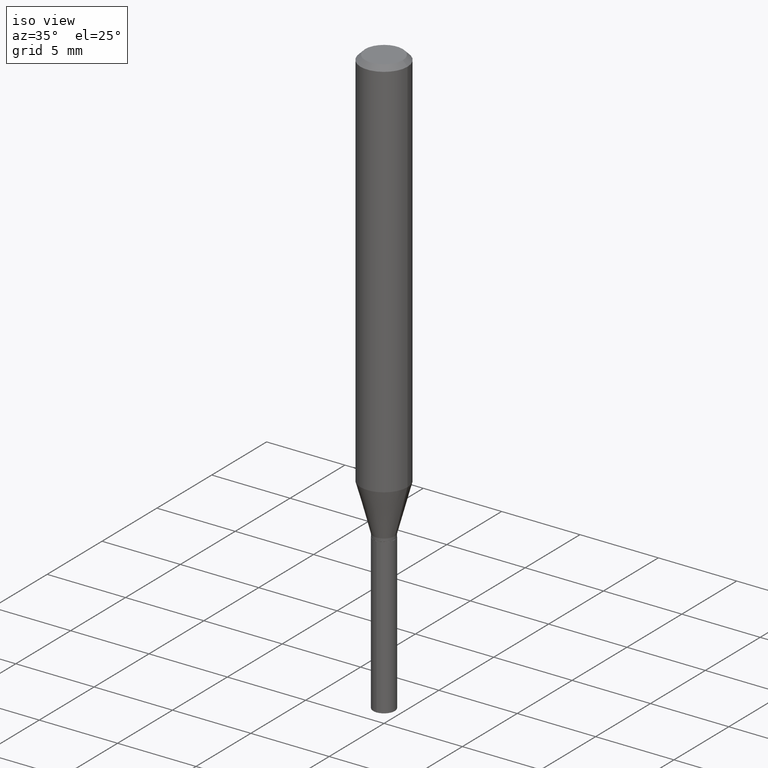
[diagram: clean part render]
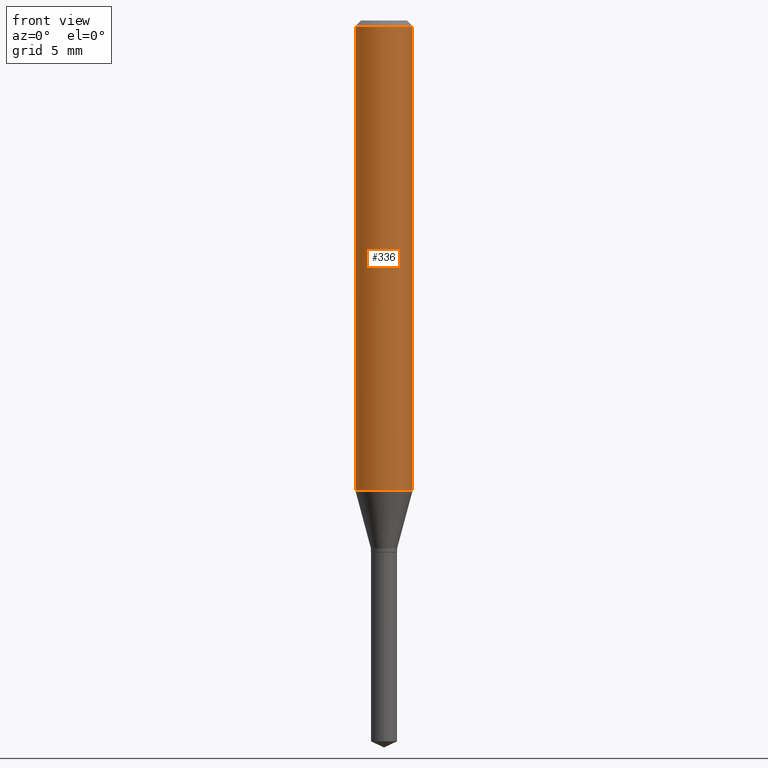
[diagram: tour spotlight — one face highlighted and labeled with its STEP entity id]
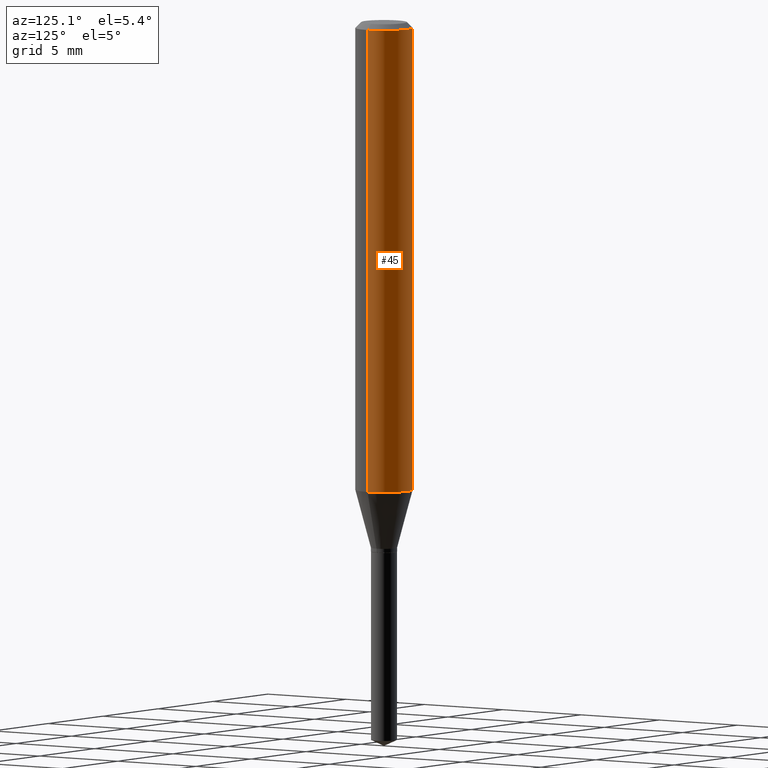
[diagram: tour spotlight — one face highlighted and labeled with its STEP entity id]
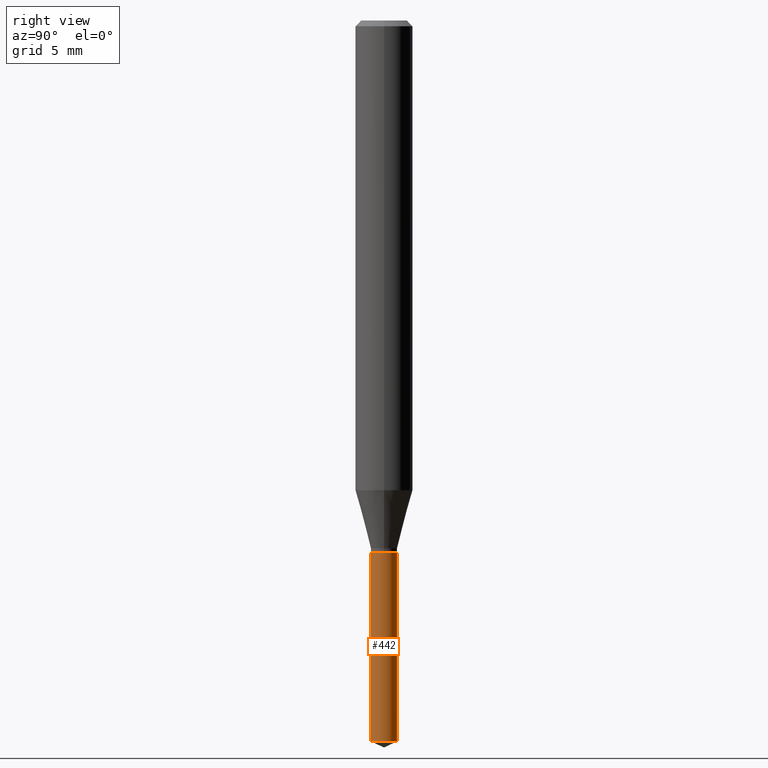
[diagram: tour spotlight — one face highlighted and labeled with its STEP entity id]
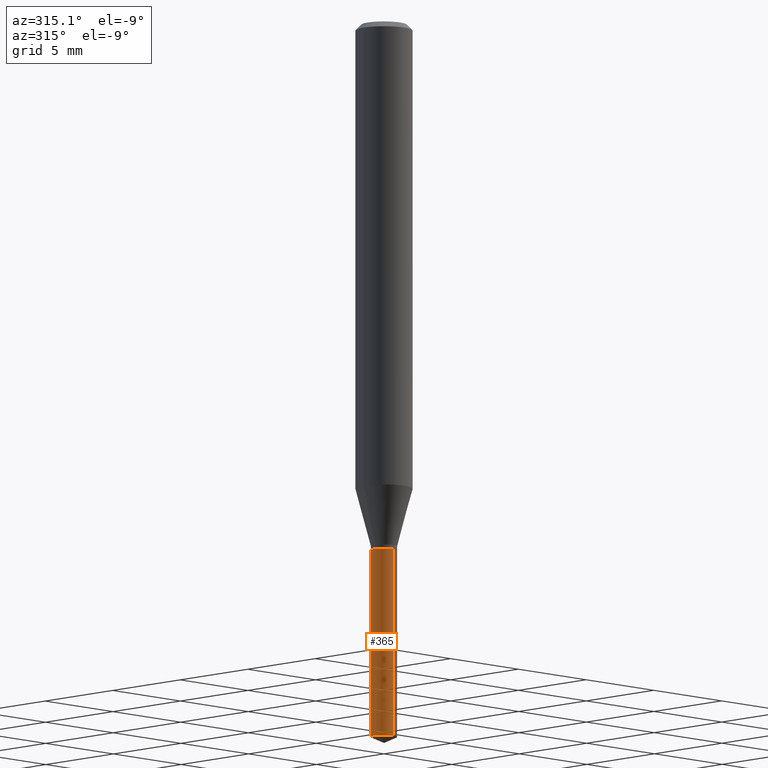
[diagram: tour spotlight — one face highlighted and labeled with its STEP entity id]
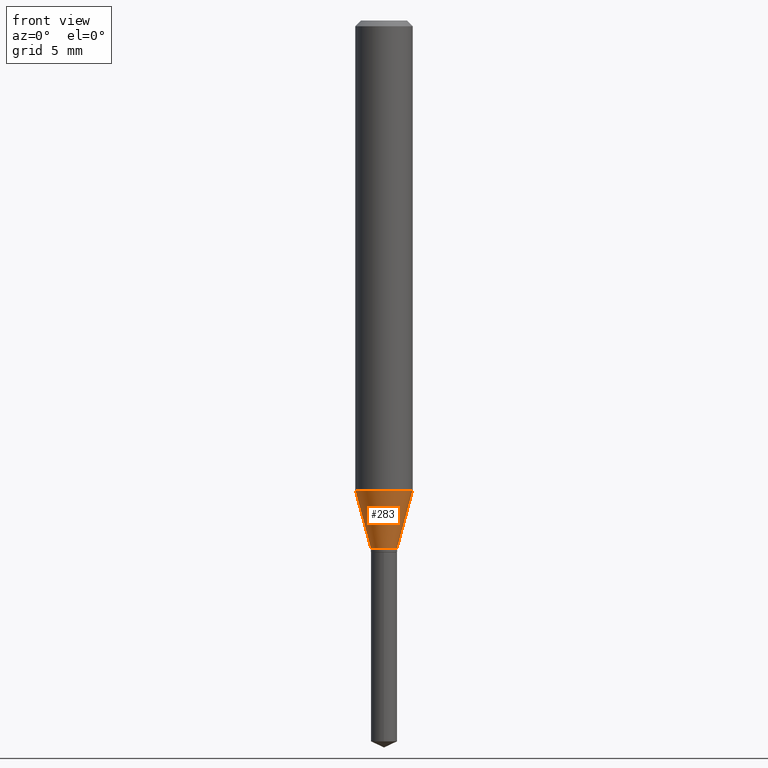
[diagram: tour spotlight — one face highlighted and labeled with its STEP entity id]
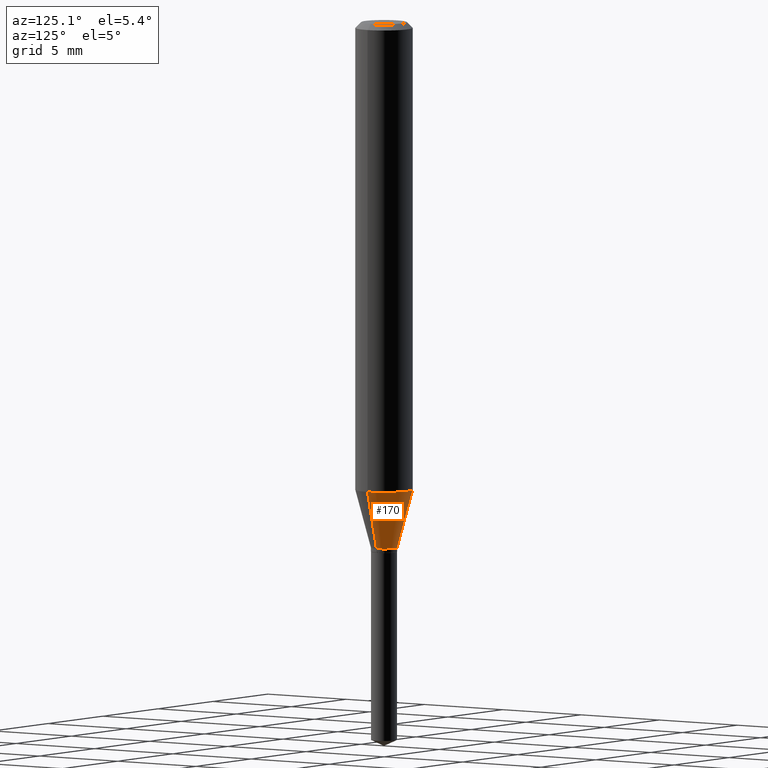
[diagram: tour spotlight — one face highlighted and labeled with its STEP entity id]
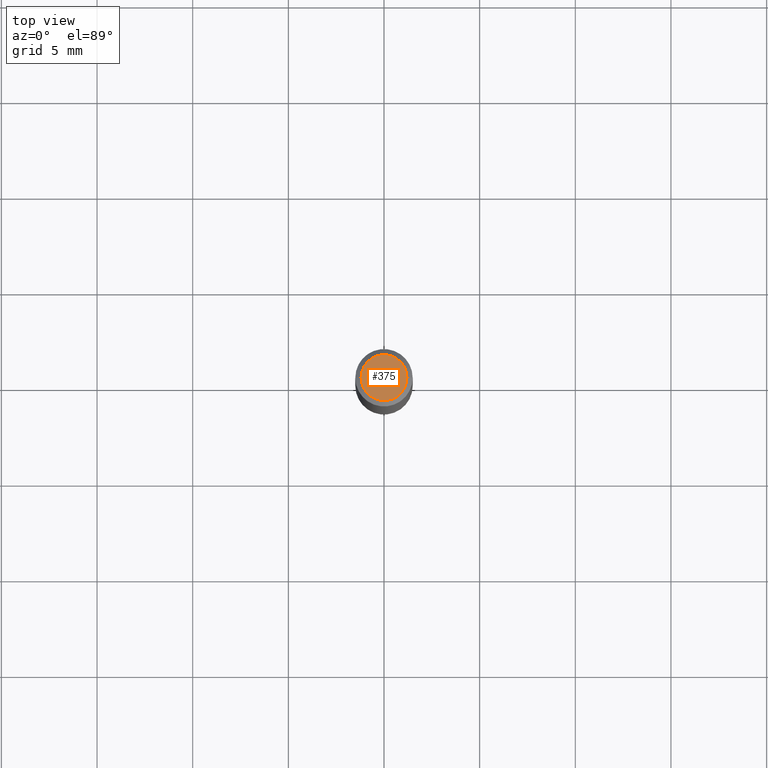
[diagram: tour spotlight — one face highlighted and labeled with its STEP entity id]
A machine part: a face-by-face anatomy tour. The part has 17 B-rep faces; the first image is the clean iso view, then the 7 largest visible faces are spotlighted one at a time (largest first), each with its STEP entity span.

Face 1 — front view, entity #336. In plain terms, the highlighted cylindrical surface (edge-blend (fillet) strip) has radius 1.4999 mm, axis along (-0, 0, 1).
Definition (entity closure, byte-faithful):
#10 = VERTEX_POINT ( 'NONE', #228 ) ;
#12 = EDGE_CURVE ( 'NONE', #10, #180, #347, .T. ) ;
#24 = DIRECTION ( 'NONE',  ( 1.000000000000000000, -6.982962677686266711E-15, 0.000000000000000000 ) ) ;
#39 = VERTEX_POINT ( 'NONE', #48 ) ;
#41 = DIRECTION ( 'NONE',  ( 1.000000000000000000, -6.982962677686266711E-15, 0.000000000000000000 ) ) ;
#48 = CARTESIAN_POINT ( 'NONE',  ( -0.05905000000000011628, -2.955294458470109520E-15, -0.9666011690770388576 ) ) ;
#65 = DIRECTION ( 'NONE',  ( -2.445468806185136597E-29, 3.491481338843145583E-15, 1.000000000000000000 ) ) ;
#76 = CARTESIAN_POINT ( 'NONE',  ( 2.888098660104663328E-31, -4.123439461173779030E-17, -0.01181000000000006871 ) ) ;
#100 = DIRECTION ( 'NONE',  ( 1.000000000000000000, -6.982962677686266711E-15, 4.876176775795935793E-29 ) ) ;
#120 = VECTOR ( 'NONE', #431, 39.37007874015748143 ) ;
#135 = CYLINDRICAL_SURFACE ( 'NONE', #371, 0.05905000000000006077 ) ;
#138 = EDGE_CURVE ( 'NONE', #259, #180, #447, .T. ) ;
#139 = ORIENTED_EDGE ( 'NONE', *, *, #309, .T. ) ;
#145 = ORIENTED_EDGE ( 'NONE', *, *, #138, .F. ) ;
#148 = DIRECTION ( 'NONE',  ( -2.445468806185136877E-29, 3.491481338843145188E-15, 1.000000000000000000 ) ) ;
#155 = LINE ( 'NONE', #274, #120 ) ;
#180 = VERTEX_POINT ( 'NONE', #400 ) ;
#228 = CARTESIAN_POINT ( 'NONE',  ( 0.05905000000000011628, -3.787213890053824327E-15, -0.9666011690770388576 ) ) ;
#254 = FACE_OUTER_BOUND ( 'NONE', #260, .T. ) ;
#259 = VERTEX_POINT ( 'NONE', #290 ) ;
#260 = EDGE_LOOP ( 'NONE', ( #332, #139, #485, #145 ) ) ;
#274 = CARTESIAN_POINT ( 'NONE',  ( -0.05905000000000006077, 4.195754854663395916E-16, -2.904631170795524694E-30 ) ) ;
#279 = VECTOR ( 'NONE', #148, 39.37007874015748143 ) ;
#290 = CARTESIAN_POINT ( 'NONE',  ( -0.05904999999999999832, -1.288476683807753089E-15, -0.01181000000000006871 ) ) ;
#305 = CIRCLE ( 'NONE', #420, 0.05905000000000011628 ) ;
#309 = EDGE_CURVE ( 'NONE', #39, #10, #305, .T. ) ;
#319 = CARTESIAN_POINT ( 'NONE',  ( 2.363793006999983413E-29, -3.374869943936449013E-15, -0.9666011690770388576 ) ) ;
#332 = ORIENTED_EDGE ( 'NONE', *, *, #416, .F. ) ;
#336 = ADVANCED_FACE ( 'NONE', ( #254 ), #135, .T. ) ;
#347 = LINE ( 'NONE', #470, #279 ) ;
#364 = DIRECTION ( 'NONE',  ( -2.445468806185136597E-29, 3.491481338843145583E-15, 1.000000000000000000 ) ) ;
#371 = AXIS2_PLACEMENT_3D ( 'NONE', #410, #65, #100 ) ;
#383 = DIRECTION ( 'NONE',  ( -2.445468806185136597E-29, 3.491481338843145583E-15, 1.000000000000000000 ) ) ;
#400 = CARTESIAN_POINT ( 'NONE',  ( 0.05904999999999999832, -4.535783407291118600E-16, -0.01181000000000006871 ) ) ;
#410 = CARTESIAN_POINT ( 'NONE',  ( 0.000000000000000000, 0.000000000000000000, 0.000000000000000000 ) ) ;
#416 = EDGE_CURVE ( 'NONE', #39, #259, #155, .T. ) ;
#420 = AXIS2_PLACEMENT_3D ( 'NONE', #319, #364, #24 ) ;
#431 = DIRECTION ( 'NONE',  ( -2.445468806185136877E-29, 3.491481338843145188E-15, 1.000000000000000000 ) ) ;
#436 = AXIS2_PLACEMENT_3D ( 'NONE', #76, #383, #41 ) ;
#447 = CIRCLE ( 'NONE', #436, 0.05904999999999999832 ) ;
#470 = CARTESIAN_POINT ( 'NONE',  ( 0.05905000000000006077, -4.123439461173744764E-16, 2.879382386107503023E-30 ) ) ;
#485 = ORIENTED_EDGE ( 'NONE', *, *, #12, .T. ) ;

Face 2 — auxiliary view, entity #45. In plain terms, the highlighted cylindrical surface (edge-blend (fillet) strip) has radius 1.4999 mm, axis along (-0, 0, 1).
Definition (entity closure, byte-faithful):
#3 = CARTESIAN_POINT ( 'NONE',  ( 2.888098660104663328E-31, -4.123439461173779030E-17, -0.01181000000000006871 ) ) ;
#10 = VERTEX_POINT ( 'NONE', #228 ) ;
#12 = EDGE_CURVE ( 'NONE', #10, #180, #347, .T. ) ;
#15 = CARTESIAN_POINT ( 'NONE',  ( 2.363793006999983413E-29, -3.374869943936449013E-15, -0.9666011690770388576 ) ) ;
#39 = VERTEX_POINT ( 'NONE', #48 ) ;
#42 = AXIS2_PLACEMENT_3D ( 'NONE', #310, #273, #149 ) ;
#45 = ADVANCED_FACE ( 'NONE', ( #424 ), #75, .T. ) ;
#48 = CARTESIAN_POINT ( 'NONE',  ( -0.05905000000000011628, -2.955294458470109520E-15, -0.9666011690770388576 ) ) ;
#53 = EDGE_LOOP ( 'NONE', ( #479, #243, #458, #308 ) ) ;
#68 = AXIS2_PLACEMENT_3D ( 'NONE', #3, #140, #484 ) ;
#75 = CYLINDRICAL_SURFACE ( 'NONE', #42, 0.05905000000000006077 ) ;
#104 = AXIS2_PLACEMENT_3D ( 'NONE', #15, #224, #345 ) ;
#120 = VECTOR ( 'NONE', #431, 39.37007874015748143 ) ;
#140 = DIRECTION ( 'NONE',  ( -2.445468806185136597E-29, 3.491481338843145583E-15, 1.000000000000000000 ) ) ;
#148 = DIRECTION ( 'NONE',  ( -2.445468806185136877E-29, 3.491481338843145188E-15, 1.000000000000000000 ) ) ;
#149 = DIRECTION ( 'NONE',  ( 1.000000000000000000, -6.982962677686266711E-15, 4.876176775795935793E-29 ) ) ;
#155 = LINE ( 'NONE', #274, #120 ) ;
#180 = VERTEX_POINT ( 'NONE', #400 ) ;
#224 = DIRECTION ( 'NONE',  ( -2.445468806185136597E-29, 3.491481338843145583E-15, 1.000000000000000000 ) ) ;
#228 = CARTESIAN_POINT ( 'NONE',  ( 0.05905000000000011628, -3.787213890053824327E-15, -0.9666011690770388576 ) ) ;
#243 = ORIENTED_EDGE ( 'NONE', *, *, #416, .T. ) ;
#259 = VERTEX_POINT ( 'NONE', #290 ) ;
#273 = DIRECTION ( 'NONE',  ( -2.445468806185136597E-29, 3.491481338843145583E-15, 1.000000000000000000 ) ) ;
#274 = CARTESIAN_POINT ( 'NONE',  ( -0.05905000000000006077, 4.195754854663395916E-16, -2.904631170795524694E-30 ) ) ;
#279 = VECTOR ( 'NONE', #148, 39.37007874015748143 ) ;
#290 = CARTESIAN_POINT ( 'NONE',  ( -0.05904999999999999832, -1.288476683807753089E-15, -0.01181000000000006871 ) ) ;
#308 = ORIENTED_EDGE ( 'NONE', *, *, #12, .F. ) ;
#310 = CARTESIAN_POINT ( 'NONE',  ( 0.000000000000000000, 0.000000000000000000, 0.000000000000000000 ) ) ;
#345 = DIRECTION ( 'NONE',  ( 1.000000000000000000, -6.982962677686266711E-15, 0.000000000000000000 ) ) ;
#347 = LINE ( 'NONE', #470, #279 ) ;
#363 = CIRCLE ( 'NONE', #68, 0.05904999999999999832 ) ;
#400 = CARTESIAN_POINT ( 'NONE',  ( 0.05904999999999999832, -4.535783407291118600E-16, -0.01181000000000006871 ) ) ;
#402 = EDGE_CURVE ( 'NONE', #180, #259, #363, .T. ) ;
#416 = EDGE_CURVE ( 'NONE', #39, #259, #155, .T. ) ;
#424 = FACE_OUTER_BOUND ( 'NONE', #53, .T. ) ;
#431 = DIRECTION ( 'NONE',  ( -2.445468806185136877E-29, 3.491481338843145188E-15, 1.000000000000000000 ) ) ;
#458 = ORIENTED_EDGE ( 'NONE', *, *, #402, .F. ) ;
#470 = CARTESIAN_POINT ( 'NONE',  ( 0.05905000000000006077, -4.123439461173744764E-16, 2.879382386107503023E-30 ) ) ;
#474 = EDGE_CURVE ( 'NONE', #10, #39, #478, .T. ) ;
#478 = CIRCLE ( 'NONE', #104, 0.05905000000000011628 ) ;
#479 = ORIENTED_EDGE ( 'NONE', *, *, #474, .T. ) ;
#484 = DIRECTION ( 'NONE',  ( 1.000000000000000000, -6.982962677686266711E-15, 0.000000000000000000 ) ) ;

Face 3 — right view, entity #442. In plain terms, the highlighted cylindrical surface (edge-blend (fillet) strip) has radius 0.6845 mm, axis along (-0, 0, 1).
Definition (entity closure, byte-faithful):
#30 = VECTOR ( 'NONE', #453, 39.37007874015748143 ) ;
#73 = ORIENTED_EDGE ( 'NONE', *, *, #330, .F. ) ;
#107 = VERTEX_POINT ( 'NONE', #187 ) ;
#108 = CYLINDRICAL_SURFACE ( 'NONE', #468, 0.02695000000000000173 ) ;
#109 = CIRCLE ( 'NONE', #397, 0.02695000000000000173 ) ;
#127 = CARTESIAN_POINT ( 'NONE',  ( 1.914912672873737351E-16, 0.02694999999999618187, -1.094500000000000028 ) ) ;
#175 = EDGE_CURVE ( 'NONE', #261, #107, #486, .T. ) ;
#179 = DIRECTION ( 'NONE',  ( -2.445470214571802116E-29, 3.491479321953280158E-15, 1.000000000000000000 ) ) ;
#185 = VERTEX_POINT ( 'NONE', #206 ) ;
#187 = CARTESIAN_POINT ( 'NONE',  ( 1.914912672873832260E-16, 0.02694999999999482185, -1.483533008612722748 ) ) ;
#206 = CARTESIAN_POINT ( 'NONE',  ( -1.881908441636181167E-16, -0.02695000000000382159, -1.094499999999999806 ) ) ;
#209 = CARTESIAN_POINT ( 'NONE',  ( -1.881908441636181167E-16, -0.02695000000000382159, -1.094499999999999806 ) ) ;
#219 = EDGE_CURVE ( 'NONE', #107, #381, #331, .T. ) ;
#233 = DIRECTION ( 'NONE',  ( -6.982962677686265133E-15, -1.000000000000000000, 5.068363624609022710E-15 ) ) ;
#252 = DIRECTION ( 'NONE',  ( -6.982962677686265133E-15, -1.000000000000000000, 5.068363624609022710E-15 ) ) ;
#261 = VERTEX_POINT ( 'NONE', #275 ) ;
#264 = DIRECTION ( 'NONE',  ( -2.445470214571802116E-29, 3.491479321953280158E-15, 1.000000000000000000 ) ) ;
#275 = CARTESIAN_POINT ( 'NONE',  ( -1.881908441636086010E-16, -0.02695000000000517468, -1.483533008612722748 ) ) ;
#280 = VECTOR ( 'NONE', #327, 39.37007874015748143 ) ;
#294 = CARTESIAN_POINT ( 'NONE',  ( 2.676565608369631794E-29, -3.821426325363822773E-15, -1.094499999999999806 ) ) ;
#297 = ORIENTED_EDGE ( 'NONE', *, *, #324, .F. ) ;
#298 = CARTESIAN_POINT ( 'NONE',  ( 1.914912672873833000E-16, 0.02694999999999617840, -1.094500000000000028 ) ) ;
#324 = EDGE_CURVE ( 'NONE', #261, #185, #451, .T. ) ;
#327 = DIRECTION ( 'NONE',  ( -2.445470214571802396E-29, 3.491479321953280158E-15, 1.000000000000000000 ) ) ;
#330 = EDGE_CURVE ( 'NONE', #185, #381, #109, .T. ) ;
#331 = LINE ( 'NONE', #127, #280 ) ;
#340 = ORIENTED_EDGE ( 'NONE', *, *, #219, .T. ) ;
#342 = ORIENTED_EDGE ( 'NONE', *, *, #175, .T. ) ;
#348 = EDGE_LOOP ( 'NONE', ( #342, #340, #73, #297 ) ) ;
#358 = DIRECTION ( 'NONE',  ( -6.982962677686265133E-15, -1.000000000000000000, 0.000000000000000000 ) ) ;
#381 = VERTEX_POINT ( 'NONE', #298 ) ;
#397 = AXIS2_PLACEMENT_3D ( 'NONE', #294, #179, #252 ) ;
#405 = DIRECTION ( 'NONE',  ( -2.445470214571802116E-29, 3.491479321953280158E-15, 1.000000000000000000 ) ) ;
#427 = AXIS2_PLACEMENT_3D ( 'NONE', #475, #405, #358 ) ;
#442 = ADVANCED_FACE ( 'NONE', ( #460 ), #108, .T. ) ;
#451 = LINE ( 'NONE', #209, #30 ) ;
#453 = DIRECTION ( 'NONE',  ( -2.445470214571802396E-29, 3.491479321953280158E-15, 1.000000000000000000 ) ) ;
#460 = FACE_OUTER_BOUND ( 'NONE', #348, .T. ) ;
#466 = CARTESIAN_POINT ( 'NONE',  ( 2.676565608369631794E-29, -3.821426325363822773E-15, -1.094499999999999806 ) ) ;
#468 = AXIS2_PLACEMENT_3D ( 'NONE', #466, #264, #233 ) ;
#475 = CARTESIAN_POINT ( 'NONE',  ( 3.627934243417300809E-29, -5.179727030492415655E-15, -1.483533008612722748 ) ) ;
#486 = CIRCLE ( 'NONE', #427, 0.02695000000000000173 ) ;

Face 4 — auxiliary view, entity #365. In plain terms, the highlighted cylindrical surface (edge-blend (fillet) strip) has radius 0.6845 mm, axis along (-0, 0, 1).
Definition (entity closure, byte-faithful):
#14 = EDGE_CURVE ( 'NONE', #107, #261, #247, .T. ) ;
#30 = VECTOR ( 'NONE', #453, 39.37007874015748143 ) ;
#31 = DIRECTION ( 'NONE',  ( -2.445470214571802116E-29, 3.491479321953280158E-15, 1.000000000000000000 ) ) ;
#37 = AXIS2_PLACEMENT_3D ( 'NONE', #393, #390, #421 ) ;
#46 = DIRECTION ( 'NONE',  ( -6.982962677686265133E-15, -1.000000000000000000, 5.068363624609022710E-15 ) ) ;
#66 = EDGE_LOOP ( 'NONE', ( #469, #379, #374, #215 ) ) ;
#107 = VERTEX_POINT ( 'NONE', #187 ) ;
#117 = EDGE_CURVE ( 'NONE', #381, #185, #426, .T. ) ;
#127 = CARTESIAN_POINT ( 'NONE',  ( 1.914912672873737351E-16, 0.02694999999999618187, -1.094500000000000028 ) ) ;
#137 = DIRECTION ( 'NONE',  ( -6.982962677686265133E-15, -1.000000000000000000, 5.068363624609022710E-15 ) ) ;
#162 = AXIS2_PLACEMENT_3D ( 'NONE', #212, #31, #137 ) ;
#185 = VERTEX_POINT ( 'NONE', #206 ) ;
#187 = CARTESIAN_POINT ( 'NONE',  ( 1.914912672873832260E-16, 0.02694999999999482185, -1.483533008612722748 ) ) ;
#206 = CARTESIAN_POINT ( 'NONE',  ( -1.881908441636181167E-16, -0.02695000000000382159, -1.094499999999999806 ) ) ;
#209 = CARTESIAN_POINT ( 'NONE',  ( -1.881908441636181167E-16, -0.02695000000000382159, -1.094499999999999806 ) ) ;
#212 = CARTESIAN_POINT ( 'NONE',  ( 2.676565608369631794E-29, -3.821426325363822773E-15, -1.094499999999999806 ) ) ;
#215 = ORIENTED_EDGE ( 'NONE', *, *, #117, .F. ) ;
#219 = EDGE_CURVE ( 'NONE', #107, #381, #331, .T. ) ;
#231 = DIRECTION ( 'NONE',  ( -2.445470214571802116E-29, 3.491479321953280158E-15, 1.000000000000000000 ) ) ;
#247 = CIRCLE ( 'NONE', #37, 0.02695000000000000173 ) ;
#256 = FACE_OUTER_BOUND ( 'NONE', #66, .T. ) ;
#261 = VERTEX_POINT ( 'NONE', #275 ) ;
#270 = AXIS2_PLACEMENT_3D ( 'NONE', #344, #231, #46 ) ;
#275 = CARTESIAN_POINT ( 'NONE',  ( -1.881908441636086010E-16, -0.02695000000000517468, -1.483533008612722748 ) ) ;
#280 = VECTOR ( 'NONE', #327, 39.37007874015748143 ) ;
#298 = CARTESIAN_POINT ( 'NONE',  ( 1.914912672873833000E-16, 0.02694999999999617840, -1.094500000000000028 ) ) ;
#324 = EDGE_CURVE ( 'NONE', #261, #185, #451, .T. ) ;
#327 = DIRECTION ( 'NONE',  ( -2.445470214571802396E-29, 3.491479321953280158E-15, 1.000000000000000000 ) ) ;
#331 = LINE ( 'NONE', #127, #280 ) ;
#344 = CARTESIAN_POINT ( 'NONE',  ( 2.676565608369631794E-29, -3.821426325363822773E-15, -1.094499999999999806 ) ) ;
#365 = ADVANCED_FACE ( 'NONE', ( #256 ), #368, .T. ) ;
#368 = CYLINDRICAL_SURFACE ( 'NONE', #162, 0.02695000000000000173 ) ;
#374 = ORIENTED_EDGE ( 'NONE', *, *, #324, .T. ) ;
#379 = ORIENTED_EDGE ( 'NONE', *, *, #14, .T. ) ;
#381 = VERTEX_POINT ( 'NONE', #298 ) ;
#390 = DIRECTION ( 'NONE',  ( -2.445470214571802116E-29, 3.491479321953280158E-15, 1.000000000000000000 ) ) ;
#393 = CARTESIAN_POINT ( 'NONE',  ( 3.627934243417300809E-29, -5.179727030492415655E-15, -1.483533008612722748 ) ) ;
#421 = DIRECTION ( 'NONE',  ( -6.982962677686265133E-15, -1.000000000000000000, 0.000000000000000000 ) ) ;
#426 = CIRCLE ( 'NONE', #270, 0.02695000000000000173 ) ;
#451 = LINE ( 'NONE', #209, #30 ) ;
#453 = DIRECTION ( 'NONE',  ( -2.445470214571802396E-29, 3.491479321953280158E-15, 1.000000000000000000 ) ) ;
#469 = ORIENTED_EDGE ( 'NONE', *, *, #219, .F. ) ;

Face 5 — front view, entity #283. In plain terms, the highlighted conical surface has half-angle 15 deg.
Definition (entity closure, byte-faithful):
#1 = CARTESIAN_POINT ( 'NONE',  ( 0.02695000000000000173, -3.981336170682838022E-15, -1.086399999999999810 ) ) ;
#10 = VERTEX_POINT ( 'NONE', #228 ) ;
#19 = LINE ( 'NONE', #88, #195 ) ;
#23 = AXIS2_PLACEMENT_3D ( 'NONE', #395, #403, #51 ) ;
#24 = DIRECTION ( 'NONE',  ( 1.000000000000000000, -6.982962677686266711E-15, 0.000000000000000000 ) ) ;
#32 = VERTEX_POINT ( 'NONE', #262 ) ;
#39 = VERTEX_POINT ( 'NONE', #48 ) ;
#40 = EDGE_CURVE ( 'NONE', #32, #377, #386, .T. ) ;
#48 = CARTESIAN_POINT ( 'NONE',  ( -0.05905000000000011628, -2.955294458470109520E-15, -0.9666011690770388576 ) ) ;
#51 = DIRECTION ( 'NONE',  ( 1.000000000000000000, -6.982962677686265133E-15, 0.000000000000000000 ) ) ;
#62 = ORIENTED_EDGE ( 'NONE', *, *, #309, .F. ) ;
#88 = CARTESIAN_POINT ( 'NONE',  ( -0.02695000000000000173, -3.601654059231846417E-15, -1.086399999999999810 ) ) ;
#96 = DIRECTION ( 'NONE',  ( -0.2588190451025213501, 5.211531920934551042E-15, 0.9659258262890682012 ) ) ;
#110 = DIRECTION ( 'NONE',  ( 0.2588190451025213501, 1.565188264969621968E-15, 0.9659258262890682012 ) ) ;
#126 = EDGE_CURVE ( 'NONE', #377, #10, #461, .T. ) ;
#146 = CARTESIAN_POINT ( 'NONE',  ( 2.656757311039532110E-29, -3.793145326519192838E-15, -1.086399999999999810 ) ) ;
#152 = VECTOR ( 'NONE', #110, 39.37007874015747433 ) ;
#164 = EDGE_CURVE ( 'NONE', #32, #39, #19, .T. ) ;
#192 = CARTESIAN_POINT ( 'NONE',  ( 0.02695000000000000173, -3.981336170682838022E-15, -1.086399999999999810 ) ) ;
#195 = VECTOR ( 'NONE', #96, 39.37007874015747433 ) ;
#228 = CARTESIAN_POINT ( 'NONE',  ( 0.05905000000000011628, -3.787213890053824327E-15, -0.9666011690770388576 ) ) ;
#245 = FACE_OUTER_BOUND ( 'NONE', #452, .T. ) ;
#262 = CARTESIAN_POINT ( 'NONE',  ( -0.02695000000000000173, -3.614921688319449844E-15, -1.086399999999999810 ) ) ;
#267 = DIRECTION ( 'NONE',  ( -2.445468806185136597E-29, 3.491481338843145583E-15, 1.000000000000000000 ) ) ;
#283 = ADVANCED_FACE ( 'NONE', ( #245 ), #333, .T. ) ;
#303 = ORIENTED_EDGE ( 'NONE', *, *, #126, .T. ) ;
#305 = CIRCLE ( 'NONE', #420, 0.05905000000000011628 ) ;
#309 = EDGE_CURVE ( 'NONE', #39, #10, #305, .T. ) ;
#319 = CARTESIAN_POINT ( 'NONE',  ( 2.363793006999983413E-29, -3.374869943936449013E-15, -0.9666011690770388576 ) ) ;
#333 = CONICAL_SURFACE ( 'NONE', #23, 0.02695000000000000173, 0.2617993877991500740 ) ;
#350 = DIRECTION ( 'NONE',  ( 1.000000000000000000, -6.982962677686265133E-15, 0.000000000000000000 ) ) ;
#362 = AXIS2_PLACEMENT_3D ( 'NONE', #146, #267, #350 ) ;
#364 = DIRECTION ( 'NONE',  ( -2.445468806185136597E-29, 3.491481338843145583E-15, 1.000000000000000000 ) ) ;
#377 = VERTEX_POINT ( 'NONE', #1 ) ;
#386 = CIRCLE ( 'NONE', #362, 0.02695000000000000173 ) ;
#395 = CARTESIAN_POINT ( 'NONE',  ( 2.656757311039532110E-29, -3.793145326519192838E-15, -1.086399999999999810 ) ) ;
#403 = DIRECTION ( 'NONE',  ( -2.445468806185136597E-29, 3.491481338843145583E-15, 1.000000000000000000 ) ) ;
#409 = ORIENTED_EDGE ( 'NONE', *, *, #164, .F. ) ;
#420 = AXIS2_PLACEMENT_3D ( 'NONE', #319, #364, #24 ) ;
#452 = EDGE_LOOP ( 'NONE', ( #409, #490, #303, #62 ) ) ;
#461 = LINE ( 'NONE', #192, #152 ) ;
#490 = ORIENTED_EDGE ( 'NONE', *, *, #40, .T. ) ;

Face 6 — auxiliary view, entity #170. In plain terms, the highlighted conical surface has half-angle 15 deg.
Definition (entity closure, byte-faithful):
#1 = CARTESIAN_POINT ( 'NONE',  ( 0.02695000000000000173, -3.981336170682838022E-15, -1.086399999999999810 ) ) ;
#10 = VERTEX_POINT ( 'NONE', #228 ) ;
#15 = CARTESIAN_POINT ( 'NONE',  ( 2.363793006999983413E-29, -3.374869943936449013E-15, -0.9666011690770388576 ) ) ;
#19 = LINE ( 'NONE', #88, #195 ) ;
#29 = AXIS2_PLACEMENT_3D ( 'NONE', #250, #277, #398 ) ;
#32 = VERTEX_POINT ( 'NONE', #262 ) ;
#39 = VERTEX_POINT ( 'NONE', #48 ) ;
#48 = CARTESIAN_POINT ( 'NONE',  ( -0.05905000000000011628, -2.955294458470109520E-15, -0.9666011690770388576 ) ) ;
#54 = DIRECTION ( 'NONE',  ( 1.000000000000000000, -6.982962677686265133E-15, 0.000000000000000000 ) ) ;
#64 = EDGE_LOOP ( 'NONE', ( #234, #136, #301, #103 ) ) ;
#88 = CARTESIAN_POINT ( 'NONE',  ( -0.02695000000000000173, -3.601654059231846417E-15, -1.086399999999999810 ) ) ;
#96 = DIRECTION ( 'NONE',  ( -0.2588190451025213501, 5.211531920934551042E-15, 0.9659258262890682012 ) ) ;
#103 = ORIENTED_EDGE ( 'NONE', *, *, #126, .F. ) ;
#104 = AXIS2_PLACEMENT_3D ( 'NONE', #15, #224, #345 ) ;
#110 = DIRECTION ( 'NONE',  ( 0.2588190451025213501, 1.565188264969621968E-15, 0.9659258262890682012 ) ) ;
#118 = FACE_OUTER_BOUND ( 'NONE', #64, .T. ) ;
#126 = EDGE_CURVE ( 'NONE', #377, #10, #461, .T. ) ;
#136 = ORIENTED_EDGE ( 'NONE', *, *, #164, .T. ) ;
#152 = VECTOR ( 'NONE', #110, 39.37007874015747433 ) ;
#156 = EDGE_CURVE ( 'NONE', #377, #32, #419, .T. ) ;
#164 = EDGE_CURVE ( 'NONE', #32, #39, #19, .T. ) ;
#170 = ADVANCED_FACE ( 'NONE', ( #118 ), #236, .T. ) ;
#188 = CARTESIAN_POINT ( 'NONE',  ( 2.656757311039532110E-29, -3.793145326519192838E-15, -1.086399999999999810 ) ) ;
#192 = CARTESIAN_POINT ( 'NONE',  ( 0.02695000000000000173, -3.981336170682838022E-15, -1.086399999999999810 ) ) ;
#195 = VECTOR ( 'NONE', #96, 39.37007874015747433 ) ;
#224 = DIRECTION ( 'NONE',  ( -2.445468806185136597E-29, 3.491481338843145583E-15, 1.000000000000000000 ) ) ;
#228 = CARTESIAN_POINT ( 'NONE',  ( 0.05905000000000011628, -3.787213890053824327E-15, -0.9666011690770388576 ) ) ;
#234 = ORIENTED_EDGE ( 'NONE', *, *, #156, .T. ) ;
#236 = CONICAL_SURFACE ( 'NONE', #29, 0.02695000000000000173, 0.2617993877991500740 ) ;
#250 = CARTESIAN_POINT ( 'NONE',  ( 2.656757311039532110E-29, -3.793145326519192838E-15, -1.086399999999999810 ) ) ;
#262 = CARTESIAN_POINT ( 'NONE',  ( -0.02695000000000000173, -3.614921688319449844E-15, -1.086399999999999810 ) ) ;
#277 = DIRECTION ( 'NONE',  ( -2.445468806185136597E-29, 3.491481338843145583E-15, 1.000000000000000000 ) ) ;
#301 = ORIENTED_EDGE ( 'NONE', *, *, #474, .F. ) ;
#313 = DIRECTION ( 'NONE',  ( -2.445468806185136597E-29, 3.491481338843145583E-15, 1.000000000000000000 ) ) ;
#345 = DIRECTION ( 'NONE',  ( 1.000000000000000000, -6.982962677686266711E-15, 0.000000000000000000 ) ) ;
#346 = AXIS2_PLACEMENT_3D ( 'NONE', #188, #313, #54 ) ;
#377 = VERTEX_POINT ( 'NONE', #1 ) ;
#398 = DIRECTION ( 'NONE',  ( 1.000000000000000000, -6.982962677686265133E-15, 0.000000000000000000 ) ) ;
#419 = CIRCLE ( 'NONE', #346, 0.02695000000000000173 ) ;
#461 = LINE ( 'NONE', #192, #152 ) ;
#474 = EDGE_CURVE ( 'NONE', #10, #39, #478, .T. ) ;
#478 = CIRCLE ( 'NONE', #104, 0.05905000000000011628 ) ;

Face 7 — top view, entity #375. In plain terms, the highlighted planar face has unit normal (0, -0, -1).
Definition (entity closure, byte-faithful):
#27 = DIRECTION ( 'NONE',  ( -1.000000000000000000, 6.982962677686265922E-15, -4.876176775795935793E-29 ) ) ;
#58 = DIRECTION ( 'NONE',  ( -2.445468806185136597E-29, 3.491481338843145583E-15, 1.000000000000000000 ) ) ;
#60 = DIRECTION ( 'NONE',  ( 1.000000000000000000, -6.982962677686266711E-15, 4.876185090822587894E-29 ) ) ;
#93 = CARTESIAN_POINT ( 'NONE',  ( -0.04724000000000000421, 3.504923541997677355E-16, -3.380025165670481712E-19 ) ) ;
#102 = CARTESIAN_POINT ( 'NONE',  ( 4.132873053354867254E-48, -5.900647395337818946E-34, -1.690012582823346072E-19 ) ) ;
#106 = VERTEX_POINT ( 'NONE', #266 ) ;
#116 = DIRECTION ( 'NONE',  ( -2.445468806185136597E-29, 3.491481338843145583E-15, 1.000000000000000000 ) ) ;
#132 = CIRCLE ( 'NONE', #263, 0.04724000000000000421 ) ;
#142 = AXIS2_PLACEMENT_3D ( 'NONE', #102, #296, #27 ) ;
#163 = CARTESIAN_POINT ( 'NONE',  ( 8.265746106709734507E-48, -1.180129479067563789E-33, -3.380025165646692144E-19 ) ) ;
#176 = FACE_OUTER_BOUND ( 'NONE', #450, .T. ) ;
#182 = EDGE_CURVE ( 'NONE', #246, #106, #487, .T. ) ;
#230 = EDGE_CURVE ( 'NONE', #106, #246, #132, .T. ) ;
#235 = CARTESIAN_POINT ( 'NONE',  ( 8.265746106709734507E-48, -1.180129479067563789E-33, -3.380025165646692144E-19 ) ) ;
#246 = VERTEX_POINT ( 'NONE', #93 ) ;
#263 = AXIS2_PLACEMENT_3D ( 'NONE', #235, #116, #356 ) ;
#266 = CARTESIAN_POINT ( 'NONE',  ( 0.04724000000000000421, -3.852183633974369345E-16, -3.380025165621689721E-19 ) ) ;
#271 = AXIS2_PLACEMENT_3D ( 'NONE', #163, #58, #60 ) ;
#296 = DIRECTION ( 'NONE',  ( 2.438088387897960049E-29, -3.491481338843145188E-15, -1.000000000000000000 ) ) ;
#356 = DIRECTION ( 'NONE',  ( 1.000000000000000000, -6.982962677686266711E-15, 4.876185090822587894E-29 ) ) ;
#375 = ADVANCED_FACE ( 'NONE', ( #176 ), #489, .F. ) ;
#404 = ORIENTED_EDGE ( 'NONE', *, *, #182, .T. ) ;
#450 = EDGE_LOOP ( 'NONE', ( #404, #454 ) ) ;
#454 = ORIENTED_EDGE ( 'NONE', *, *, #230, .T. ) ;
#487 = CIRCLE ( 'NONE', #271, 0.04724000000000000421 ) ;
#489 = PLANE ( 'NONE',  #142 ) ;